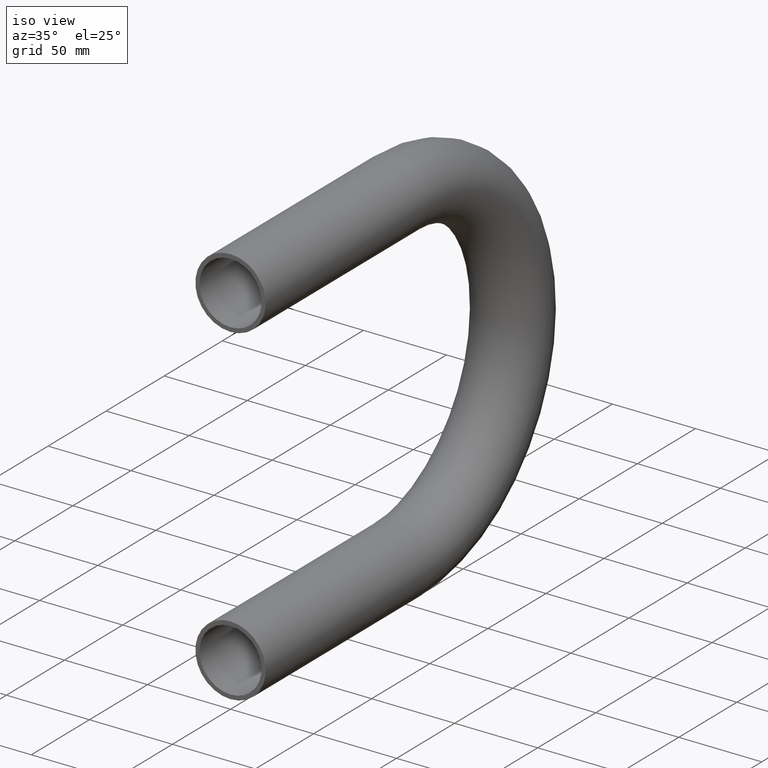
[diagram: clean part render]
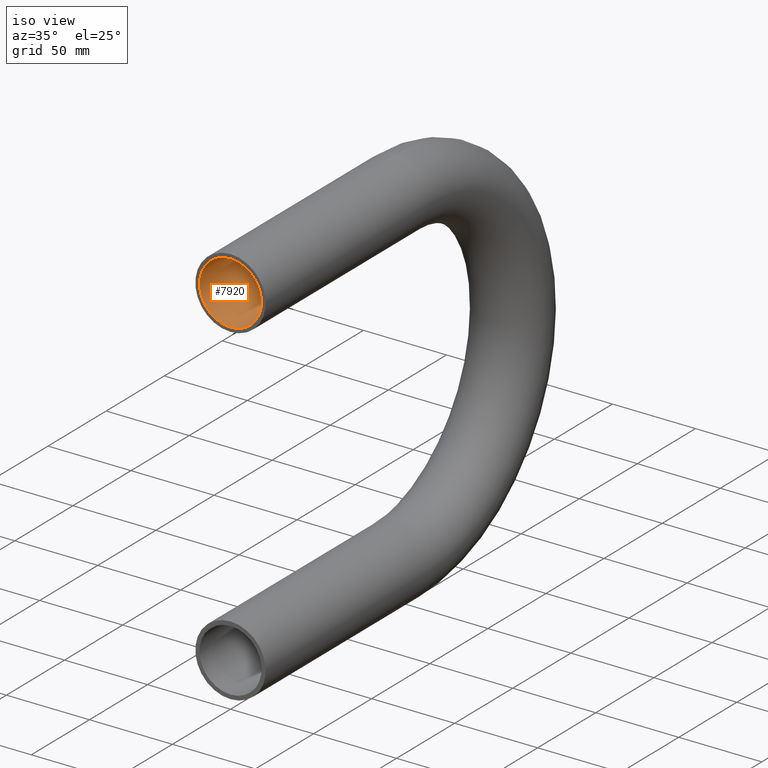
[diagram: same view with one face highlighted and labeled with its STEP entity id]
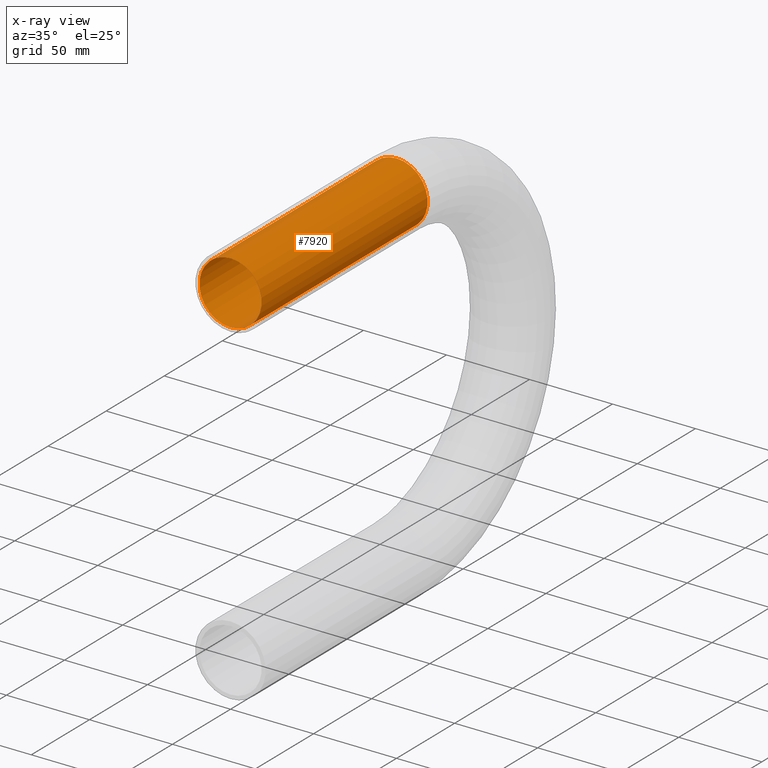
[diagram: x-ray of the same camera — body ghosted, the highlighted face saturated]
A machine part, iso view. The second image highlights one B-rep face of the part: STEP entity #7920.
The next image is the same camera in x-ray: the body ghosted, the highlighted face saturated — about 0% of this face is hidden behind the body in this view.
In plain terms, the highlighted cylindrical surface (bore or boss wall) has radius 18.7 mm, axis along (-0, -1, -0).
Its self-contained STEP definition (entity closure, byte-faithful):
#506 = CIRCLE ( 'NONE', #8284, 18.70000000000000284 ) ;
#897 = CYLINDRICAL_SURFACE ( 'NONE', #6615, 18.70000000000000284 ) ;
#1642 = CIRCLE ( 'NONE', #5580, 18.70000000000000284 ) ;
#1692 = DIRECTION ( 'NONE',  ( 0.000000000000000000, 0.000000000000000000, 1.000000000000000000 ) ) ;
#2335 = DIRECTION ( 'NONE',  ( -0.000000000000000000, -1.000000000000000000, -3.652830612043741974E-31 ) ) ;
#3031 = EDGE_CURVE ( 'NONE', #6196, #6196, #506, .T. ) ;
#3092 = CARTESIAN_POINT ( 'NONE',  ( 0.000000000000000000, 0.000000000000000000, 0.000000000000000000 ) ) ;
#4137 = CARTESIAN_POINT ( 'NONE',  ( 0.000000000000000000, 142.9203673205103371, 0.000000000000000000 ) ) ;
#4450 = FACE_OUTER_BOUND ( 'NONE', #7776, .T. ) ;
#4950 = CARTESIAN_POINT ( 'NONE',  ( 0.000000000000000000, 142.9203673205103371, -18.70000000000000284 ) ) ;
#5580 = AXIS2_PLACEMENT_3D ( 'NONE', #3092, #7038, #1692 ) ;
#5987 = DIRECTION ( 'NONE',  ( 0.000000000000000000, 0.000000000000000000, -1.000000000000000000 ) ) ;
#6196 = VERTEX_POINT ( 'NONE', #4950 ) ;
#6495 = EDGE_CURVE ( 'NONE', #12124, #12124, #1642, .T. ) ;
#6615 = AXIS2_PLACEMENT_3D ( 'NONE', #8015, #2335, #8057 ) ;
#6736 = CARTESIAN_POINT ( 'NONE',  ( 0.000000000000000000, 0.000000000000000000, 18.70000000000000284 ) ) ;
#6899 = DIRECTION ( 'NONE',  ( -0.000000000000000000, 1.000000000000000000, -0.000000000000000000 ) ) ;
#6964 = FACE_OUTER_BOUND ( 'NONE', #7079, .T. ) ;
#7038 = DIRECTION ( 'NONE',  ( 0.000000000000000000, 1.000000000000000000, 0.000000000000000000 ) ) ;
#7079 = EDGE_LOOP ( 'NONE', ( #8643 ) ) ;
#7776 = EDGE_LOOP ( 'NONE', ( #10722 ) ) ;
#7920 = ADVANCED_FACE ( 'NONE', ( #6964, #4450 ), #897, .F. ) ;
#8015 = CARTESIAN_POINT ( 'NONE',  ( 0.000000000000000000, 142.9203673205103371, 5.220638928328961672E-29 ) ) ;
#8057 = DIRECTION ( 'NONE',  ( 0.000000000000000000, 0.000000000000000000, -1.000000000000000000 ) ) ;
#8284 = AXIS2_PLACEMENT_3D ( 'NONE', #4137, #6899, #5987 ) ;
#8643 = ORIENTED_EDGE ( 'NONE', *, *, #3031, .T. ) ;
#10722 = ORIENTED_EDGE ( 'NONE', *, *, #6495, .F. ) ;
#12124 = VERTEX_POINT ( 'NONE', #6736 ) ;